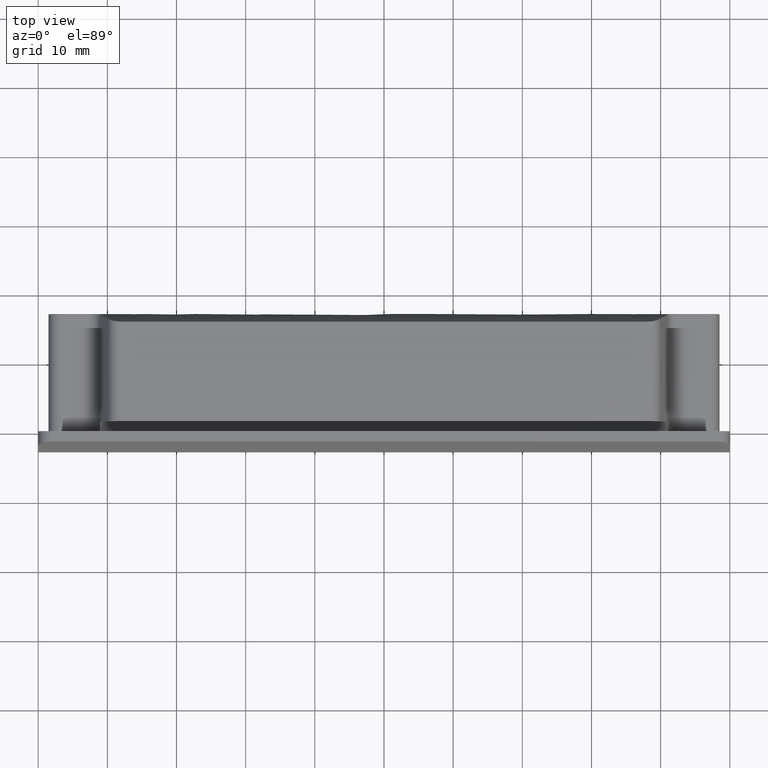
[diagram: clean part render]
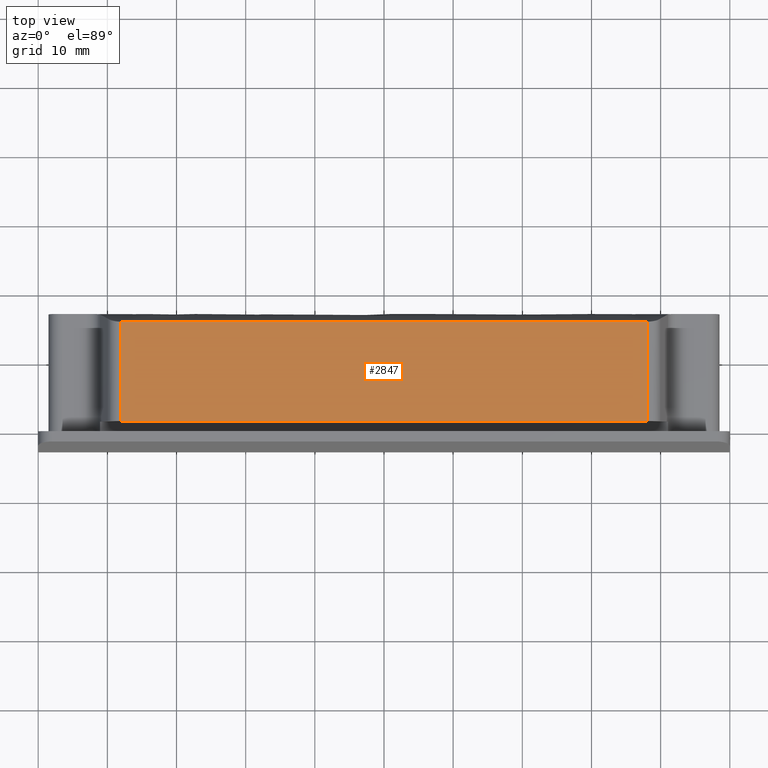
[diagram: same view with one face highlighted and labeled with its STEP entity id]
A machine part, top view. The second image highlights one B-rep face of the part: STEP entity #2847.
In plain terms, the highlighted face is a freeform B-spline surface patch.
Its self-contained STEP definition (entity closure, byte-faithful):
#304=CARTESIAN_POINT('',(-38.022851075579148,15.770552816080301,-0.000000092986828));
#305=VERTEX_POINT('',#304);
#340=CARTESIAN_POINT('',(-38.022851075579148,1.399999999999976,0.0));
#341=VERTEX_POINT('',#340);
#355=CARTESIAN_POINT('',(-38.022851075579148,15.770552816080301,-0.000000092986828));
#356=CARTESIAN_POINT('',(-38.022851075579148,1.399999999999976,0.0));
#357=QUASI_UNIFORM_CURVE('',1,(#355,#356),.UNSPECIFIED.,.F.,.U.);
#358=EDGE_CURVE('',#305,#341,#357,.T.);
#530=CARTESIAN_POINT('',(38.022851075579148,15.770552816080301,-0.000000092986828));
#531=VERTEX_POINT('',#530);
#555=CARTESIAN_POINT('',(38.022851075579148,1.399999999999976,0.0));
#556=VERTEX_POINT('',#555);
#557=CARTESIAN_POINT('',(38.022851075579148,1.399999999999976,0.0));
#558=CARTESIAN_POINT('',(38.022851075579148,15.770552816080301,-0.000000092986828));
#559=QUASI_UNIFORM_CURVE('',1,(#557,#558),.UNSPECIFIED.,.F.,.U.);
#560=EDGE_CURVE('',#556,#531,#559,.T.);
#2819=CARTESIAN_POINT('',(38.022851075579148,1.399999999999976,0.0));
#2820=CARTESIAN_POINT('',(-38.022851075579148,1.399999999999976,0.0));
#2821=QUASI_UNIFORM_CURVE('',1,(#2819,#2820),.UNSPECIFIED.,.F.,.U.);
#2822=EDGE_CURVE('',#556,#341,#2821,.T.);
#2832=CARTESIAN_POINT('',(41.821332765086879,0.682190831130924,0.0));
#2833=CARTESIAN_POINT('',(-41.821330045480643,0.682190831130924,0.0));
#2834=CARTESIAN_POINT('',(41.821332765086879,16.488361214052830,0.0));
#2835=CARTESIAN_POINT('',(-41.821330045480643,16.488361214052830,0.0));
#2836=B_SPLINE_SURFACE_WITH_KNOTS('',1,1,((#2832,#2834),(#2833,#2835)),.UNSPECIFIED.,.F.,.F.,.U.,(2,2),(2,2),(0.0,83.642662810567515),(0.0,15.806170382921900),.UNSPECIFIED.);
#2837=CARTESIAN_POINT('',(38.022851075579148,15.770552816080301,-0.000000092986828));
#2838=CARTESIAN_POINT('',(-38.022851075579148,15.770552816080301,-0.000000092986828));
#2839=QUASI_UNIFORM_CURVE('',1,(#2837,#2838),.UNSPECIFIED.,.F.,.U.);
#2840=EDGE_CURVE('',#531,#305,#2839,.T.);
#2841=ORIENTED_EDGE('',*,*,#2840,.T.);
#2842=ORIENTED_EDGE('',*,*,#358,.T.);
#2843=ORIENTED_EDGE('',*,*,#2822,.F.);
#2844=ORIENTED_EDGE('',*,*,#560,.T.);
#2845=EDGE_LOOP('',(#2841,#2842,#2843,#2844));
#2846=FACE_OUTER_BOUND('',#2845,.T.);
#2847=ADVANCED_FACE('',(#2846),#2836,.F.);